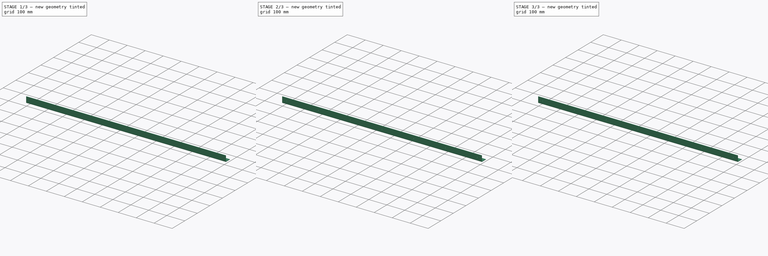
[diagram: build sequence overview — one tinted view per stage of 3, left to right]
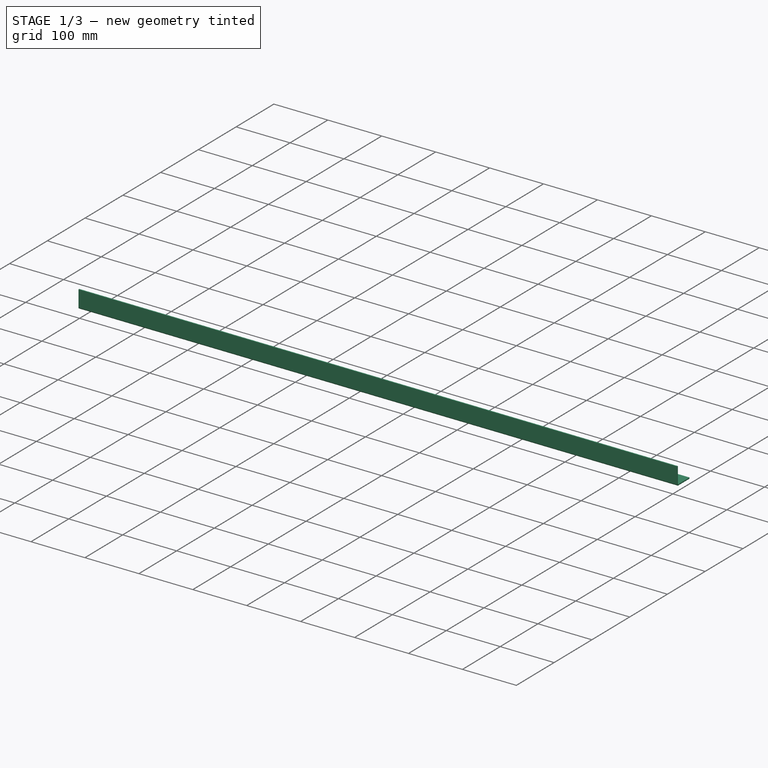
[diagram: stage 1 of 3 — iso view after this stage's code; geometry added in this stage tinted green]
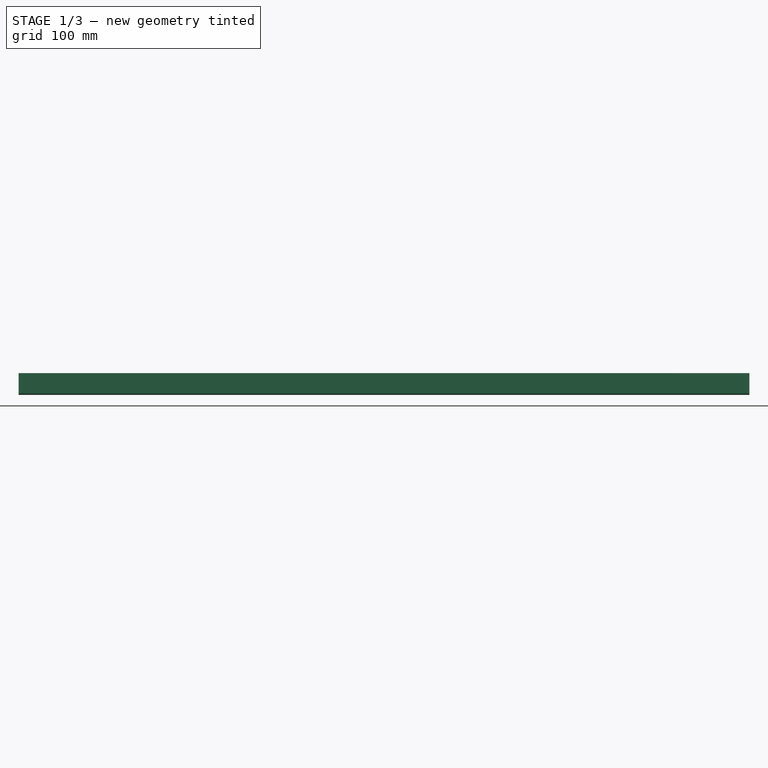
[diagram: stage 1 of 3 — front view after this stage's code; geometry added in this stage tinted green]
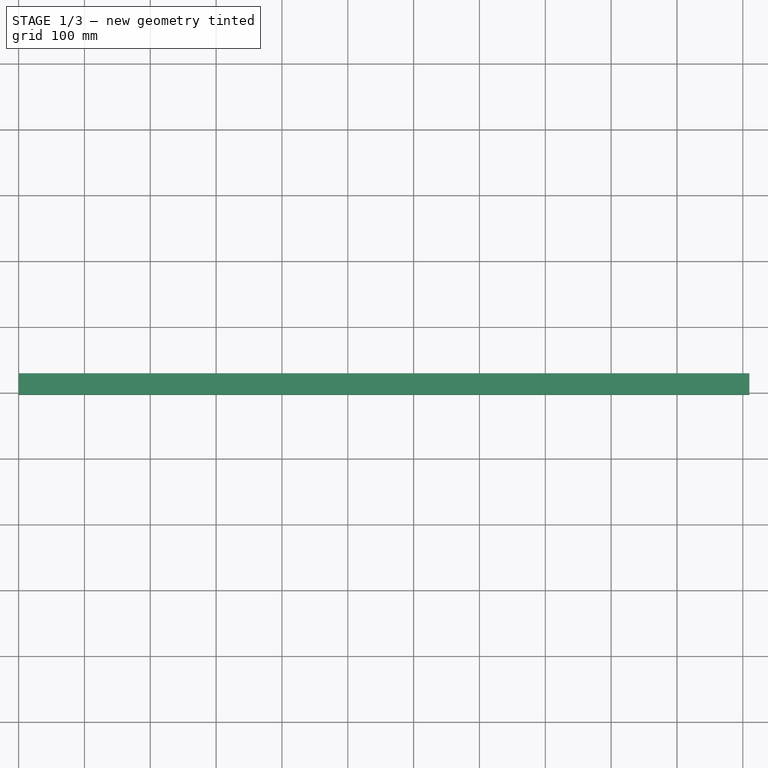
[diagram: stage 1 of 3 — top view after this stage's code; geometry added in this stage tinted green]
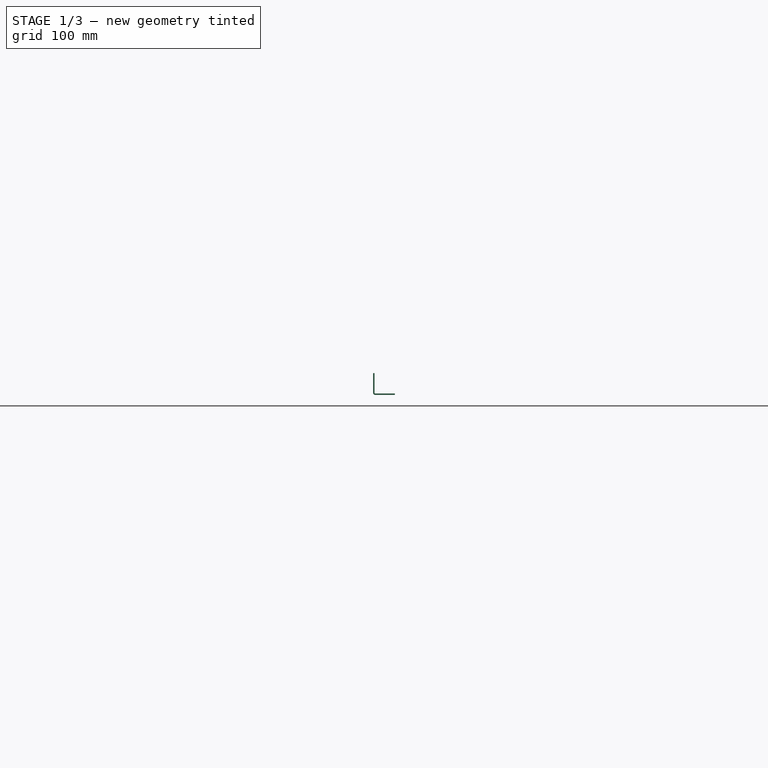
[diagram: stage 1 of 3 — right view after this stage's code; geometry added in this stage tinted green]
FCSTD DOCUMENT  (FreeCAD 0.17R13528 (Git))
Label: RaidisseurArriereConsole
License: All rights reserved
LicenseURL: http://en.wikipedia.org/wiki/All_rights_reserved
objects: Drawing::FeatureViewPython×12, Drawing::FeatureViewPart×3, Sketcher::SketchObject×2, PartDesign::Pocket×2, PartDesign::LinearPattern×2, Part::Box×1, Part::FeaturePython×1, PartDesign::FeatureBase×1, PartDesign::Body×1, Drawing::FeaturePage×1
note: 12 computed .brp shape members not serialized (recipe doc carries the construction recipe); baked Part::Feature solids carry a one-line shape summary decoded from their .brp

FEATURE [Part::Box] Box  label="Cube"
  AttacherType = Attacher::AttachEngine3D
  Height = 2
  Length = 1110
  Width = 30
FEATURE [Part::FeaturePython] Bend  # WARN: FeaturePython — macro-defined, semantics opaque (R4)
  angle = 90
  baseObject = -> Box [Face3]
  gap1 = 0
  gap2 = 0
  invert = false
  length = 30
  radius = 1
  reliefd = 1
  reliefw = 0.5
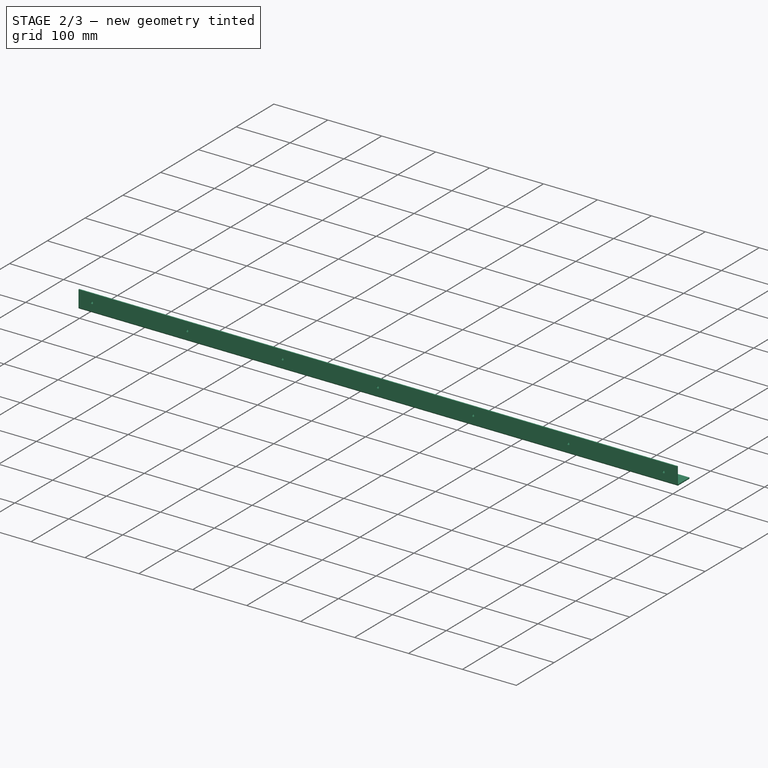
[diagram: stage 2 of 3 — iso view after this stage's code; geometry added in this stage tinted green]
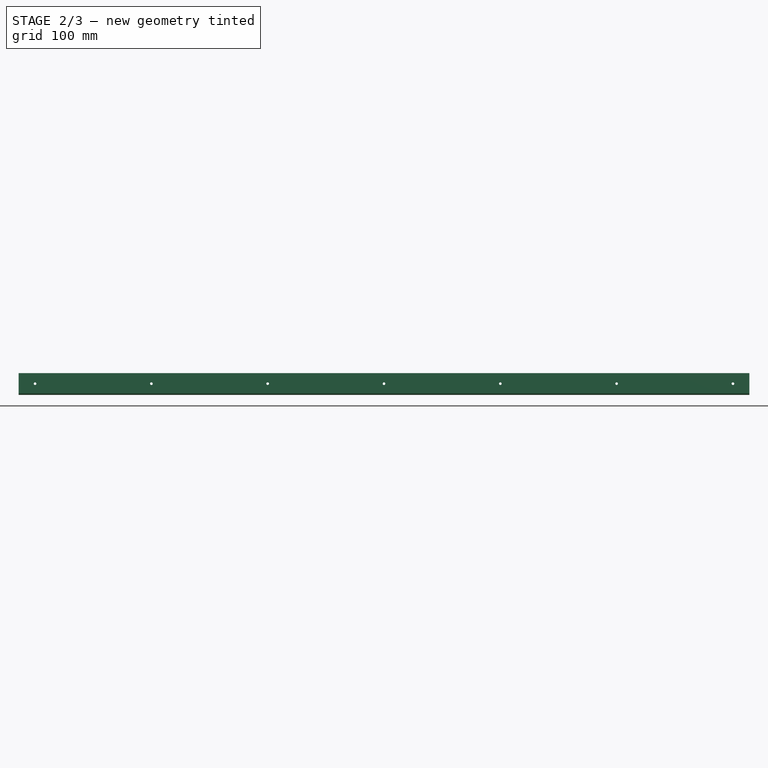
[diagram: stage 2 of 3 — front view after this stage's code; geometry added in this stage tinted green]
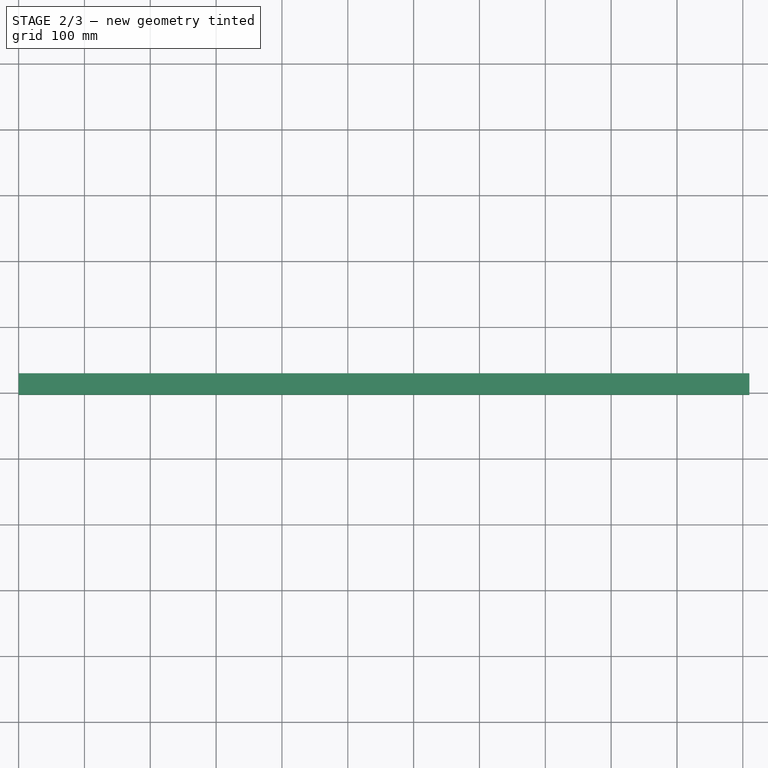
[diagram: stage 2 of 3 — top view after this stage's code; geometry added in this stage tinted green]
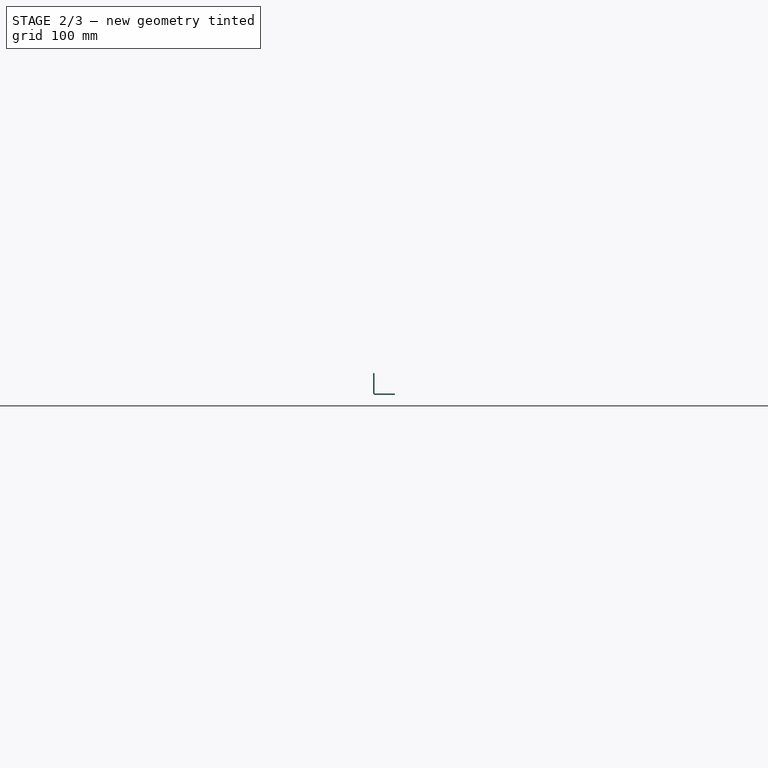
[diagram: stage 2 of 3 — right view after this stage's code; geometry added in this stage tinted green]
FEATURE [PartDesign::FeatureBase] BaseFeature
  BaseFeature = -> Bend
FEATURE [Sketcher::SketchObject] Sketch
  MapMode = 5
  Placement = pos=(0,-3,0) rot=(1,0,0;1.5708rad)
  Support = -> [BaseFeature]
  sketch-geometry (1):
    g0: Circle CenterX=25 CenterY=17 CenterZ=0 NormalX=0 NormalY=0 NormalZ=1 AngleXU=0 Radius=2
  constraints (3):
    c: DistanceX(g-1,g0) = 25
    c: DistanceY(g0) = 17
    c: Radius(g0) = 2
FEATURE [PartDesign::Pocket] Pocket
  BaseFeature = -> BaseFeature
  Length = 5
  Length2 = 100
  Profile = -> Sketch
  Refine = true
  Type = 1
FEATURE [PartDesign::LinearPattern] LinearPattern
  BaseFeature = -> Pocket
  Direction = -> Sketch [H_Axis]
  Length = 1060
  Occurrences = 7
  Originals = -> [Pocket]
  Refine = true
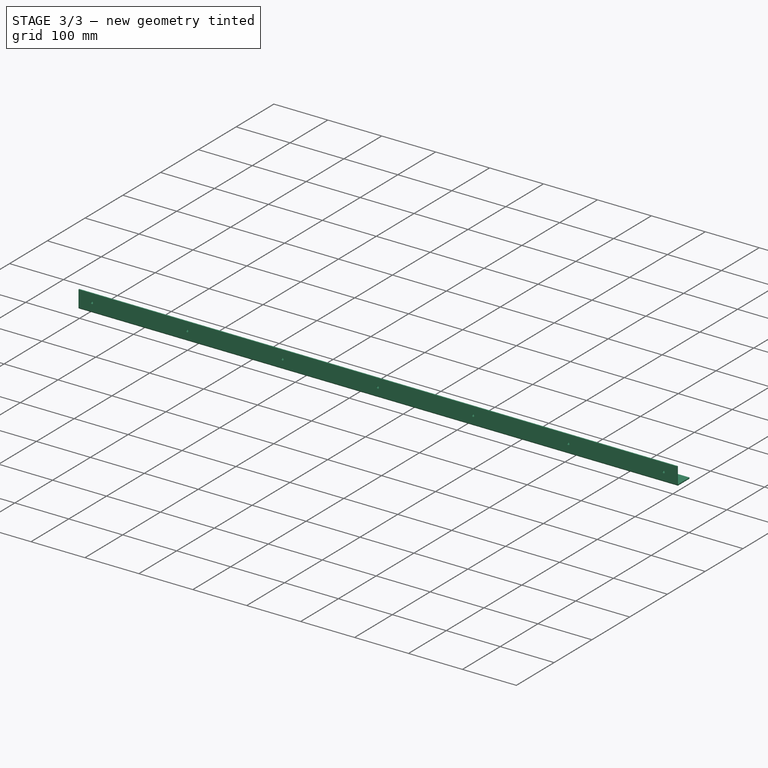
[diagram: stage 3 of 3 — iso view after this stage's code; geometry added in this stage tinted green]
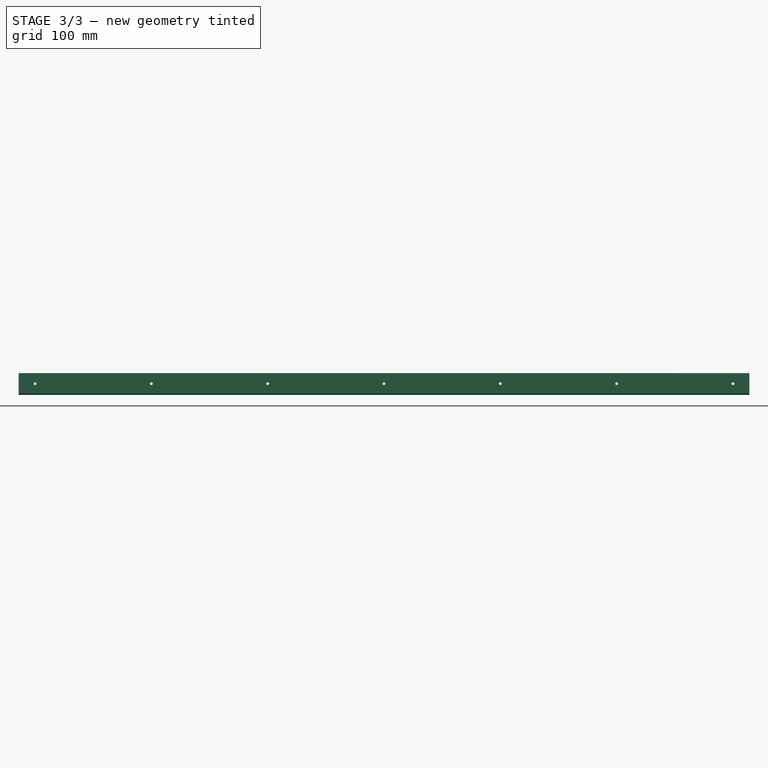
[diagram: stage 3 of 3 — front view after this stage's code; geometry added in this stage tinted green]
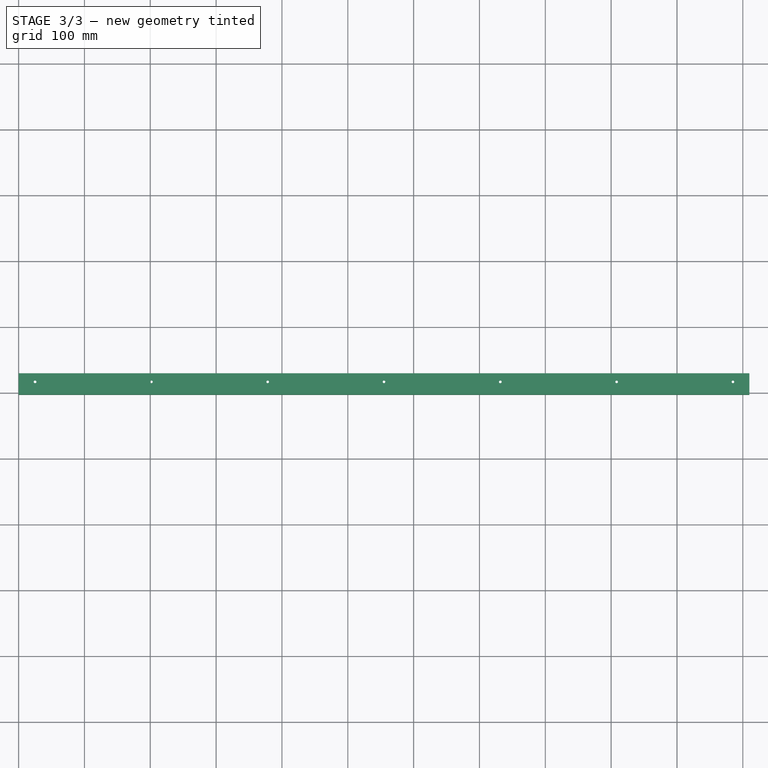
[diagram: stage 3 of 3 — top view after this stage's code; geometry added in this stage tinted green]
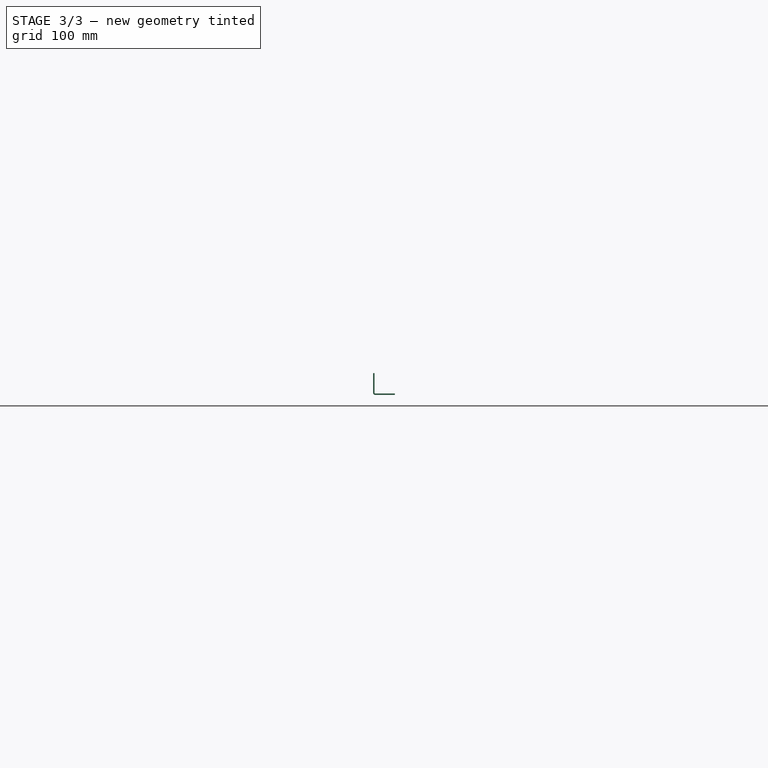
[diagram: stage 3 of 3 — right view after this stage's code; geometry added in this stage tinted green]
FEATURE [Sketcher::SketchObject] Sketch001
  MapMode = 5
  Placement = pos=(0,0,0) rot=(1,0,0;3.14159rad)
  Support = -> [LinearPattern]
  sketch-geometry (1):
    g0: Circle CenterX=25 CenterY=-17 CenterZ=0 NormalX=0 NormalY=0 NormalZ=1 AngleXU=0 Radius=2
  constraints (3):
    c: DistanceX(g0) = 25
    c: Radius(g0) = 2
    c: DistanceY(g0) = -17
FEATURE [PartDesign::Pocket] Pocket001
  BaseFeature = -> LinearPattern
  Length = 5
  Length2 = 100
  Profile = -> Sketch001
  Refine = true
  Type = 1
FEATURE [PartDesign::LinearPattern] LinearPattern001
  BaseFeature = -> Pocket001
  Direction = -> Sketch001 [H_Axis]
  Length = 1060
  Occurrences = 7
  Originals = -> [Pocket001]
  Refine = true
FEATURE [PartDesign::Body] Body
  BaseFeature = -> Bend
  Group = -> [BaseFeature,Sketch,Pocket,LinearPattern,Sketch001,Pocket001,LinearPattern001]
  Origin = -> Origin
  Tip = -> LinearPattern001
FEATURE [Drawing::FeatureViewPart] Ortho  label="Ortho_0_0"
  Direction = (0,0,1)
  HiddenWidth = 0.15
  LineWidth = 0.35
  Rotation = 0
  Scale = 0.2
  ShowHiddenLines = false
  ShowSmoothLines = false
  Source = -> LinearPattern001
  Tolerance = 0.05
  ViewResult = <g id="Ortho_0_0"\n   transform="rotate(0,25.4667,62.2667) translate(25.4667,62.2667) scale(0.2,0.2)"\n  >\n<g   fill="none"\n   stroke="rgb(0, 0, 0)"\n   stroke-linecap="butt"\n   stroke-linejoin="miter"\n   stroke-width="1.750000"\n   transform="scale(1,-1)"\n  >\n<path id= "1" d=" M 0 -3 L 1110 -3 " />\n<path id= "2" d=" M 1110 -3 L 1110 -1 " />\n<path id= "3" d=" M 1110 0 L 1110 30 " />\n<path d="M1110,0 Q1110,-0.169424 1110,-0.330279  Q1110,-0.435414 1110,-0.532032  Q1110,-0.625688 1110,-0.707107  Q1110,-0.744469 1110,-0.781831  Q1110,-0.814278 1110,-0.846724  Q1110,-0.873847 1110,-0.900969  Q1110,-0.922426 1110,-0.943883  Q1110,-0.959406 1110,-0.974928  Q1110,-0.98432 1110,-0.993712  Q1110,-0.996856 1110,-1 " /><path id= "5" d=" M 0 -1 L 1110 -1 " />\n<path id= "6" d=" M 0 -3 L 0 -1 " />\n<path d="M0,0 Q0,-0.169424 0,-0.330279  Q0,-0.435414 0,-0.532032  Q0,-0.625688 0,-0.707107  Q0,-0.744469 0,-0.781831  Q0,-0.814278 0,-0.846724  Q0,-0.873847 0,-0.900969  Q0,-0.922426 0,-0.943883  Q0,-0.959406 0,-0.974928  Q0,-0.98432 0,-0.993712  Q0,-0.996856 0,-1 " /><path id= "8" d=" M 0 0 L 0 30 " />\n<path id= "9" d=" M 0 30 L 1110 30 " />\n<path id= "10" d=" M 0 0 L 1110 0 " />\n<circle cx ="555" cy ="17" r ="2" /><circle cx ="378.333" cy ="17" r ="2" /><circle cx ="25" cy ="17" r ="2" /><circle cx ="201.667" cy ="17" r ="2" /><circle cx ="1085" cy ="17" r ="2" /><circle cx ="731.667" cy ="17" r ="2" /><circle cx ="908.333" cy ="17" r ="2" /></g>\n</g>
  Visible = true
  X = 25.4667
  Y = 62.2667
FEATURE [Drawing::FeatureViewPart] Ortho001  label="Ortho_1_0"
  Direction = (-1,0,0)
  HiddenWidth = 0.15
  LineWidth = 0.35
  Rotation = 180
  Scale = 0.2
  ShowHiddenLines = false
  ShowSmoothLines = false
  Source = -> LinearPattern001
  Tolerance = 0.05
  ViewResult = <g id="Ortho_1_0"\n   transform="rotate(180,264.933,62.2667) translate(264.933,62.2667) scale(0.2,0.2)"\n  >\n<g   fill="none"\n   stroke="rgb(0, 0, 0)"\n   stroke-linecap="butt"\n   stroke-linejoin="miter"\n   stroke-width="1.750000"\n   transform="scale(1,-1)"\n  >\n<path id= "1" d=" M -3 3 L -33 3 " />\n<path d="M0 0 A3 3 0 0 1 -3 3" /><path id= "3" d=" M -33 3 L -33 1 " />\n<path id= "4" d=" M -3 1 L -33 1 " />\n<path d="M-2 0 A1 1 0 0 1 -3 1" /><path id= "6" d=" M -2 0 L -2 -30 " />\n<path id= "7" d=" M 0 -30 L -2 -30 " />\n<path id= "8" d=" M 0 0 L 0 -30 " />\n</g>\n</g>
  Visible = true
  X = 264.933
  Y = 62.2667
FEATURE [Drawing::FeatureViewPart] Ortho002  label="Ortho_0_-1"
  Direction = (0,1,0)
  HiddenWidth = 0.15
  LineWidth = 0.35
  Rotation = 90
  Scale = 0.2
  ShowHiddenLines = false
  ShowSmoothLines = false
  Source = -> LinearPattern001
  Tolerance = 0.05
  ViewResult = <g id="Ortho_0_-1"\n   transform="rotate(90,25.4667,109.133) translate(25.4667,109.133) scale(0.2,0.2)"\n  >\n<g   fill="none"\n   stroke="rgb(0, 0, 0)"\n   stroke-linecap="butt"\n   stroke-linejoin="miter"\n   stroke-width="1.750000"\n   transform="scale(1,-1)"\n  >\n<path id= "1" d=" M 3 1110 L 33 1110 " />\n<path id= "2" d=" M 0 1110 L 2 1110 " />\n<path d="M2,1110 C2.0021,1110 2.00419,1110 2.00629,1110  C2.01255,1110 2.01881,1110 2.02507,1110  C2.03542,1110 2.04577,1110 2.05612,1110  C2.07042,1110 2.08473,1110 2.09903,1110  C2.11711,1110 2.13519,1110 2.15328,1110  C2.17491,1110 2.19654,1110 2.21817,1110  C2.24308,1110 2.26798,1110 2.29289,1110  C2.32077,1110 2.34864,1110 2.37651,1110  C2.43623,1110 2.49943,1110 2.56612,1110  C2.70184,1110 2.85021,1110 3,1110 " /><path id= "4" d=" M 33 0 L 33 1110 " />\n<path id= "5" d=" M 3 0 L 33 0 " />\n<path d="M2,0 C2.0021,0 2.00419,0 2.00629,0  C2.01255,0 2.01881,0 2.02507,0  C2.03542,0 2.04577,0 2.05612,0  C2.07042,0 2.08473,0 2.09903,0  C2.11711,0 2.13519,0 2.15328,0  C2.17491,0 2.19654,0 2.21817,0  C2.24308,0 2.26798,0 2.29289,0  C2.32077,0 2.34864,0 2.37651,0  C2.43623,0 2.49943,0 2.56612,0  C2.70184,0 2.85021,0 3,0 " /><path id= "7" d=" M 0 0 L 2 0 " />\n<circle cx ="17" cy ="555" r ="2" /><circle cx ="17" cy ="378.333" r ="2" /><circle cx ="17" cy ="25" r ="2" /><circle cx ="17" cy ="201.667" r ="2" /><circle cx ="17" cy ="1085" r ="2" /><circle cx ="17" cy ="731.667" r ="2" /><circle cx ="17" cy ="908.333" r ="2" /><path id= "15" d=" M 3 0 L 3 1110 " />\n<path id= "16" d=" M 0 0 L 0 1110 " />\n<path id= "17" d=" M 2 0 L 2 1110 " />\n</g>\n</g>
  Visible = true
  X = 25.4667
  Y = 109.133
FEATURE [Drawing::FeatureViewPython] dim001  # drawing view (typed FeaturePython)
  Rotation = 0
  ViewResult = <g> \n  <line x1="25.466700" y1="54.266700" x2="25.466700" y2="39.000000" style="stroke:rgb(0,0,255);stroke-width:0.30" />\n<line x1="247.466700" y1="54.266700" x2="247.466700" y2="39.000000" style="stroke:rgb(0,0,255);stroke-width:0.30" />\n<line x1="25.466700" y1="40.000000" x2="247.466700" y2="40.000000" style="stroke:rgb(0,0,255);stroke-width:0.30" /> \n  <polygon points="247.466700,40.000000 244.466700,39.000000 243.466700,40.000000 244.466700,41.000000" style="fill:rgb(0,0,255);stroke:rgb(0,0,255);stroke-width:0" /><polygon points="25.466700,40.000000 28.466700,41.000000 29.466700,40.000000 28.466700,39.000000" style="fill:rgb(0,0,255);stroke:rgb(0,0,255);stroke-width:0" /> \n  <text x="136.466700" y="38.000000" font-family="Verdana" font-size="3.6" fill="rgb(0,0,255)" text-anchor="middle" transform="rotate(0.000000 136.466700,38.000000)" >1110</text> </g>
  Visible = true
  X = 0
  Y = 0
  arrowL1 = 3
  arrowL2 = 1
  arrowW = 2
  arrow_scheme = 0
  autoPlaceOffset = 2
  autoPlaceText = true
  click1_x = 143.933
  click1_y = 40
  click2_x = 143.933
  click2_y = 40
  comma_decimal_place = false
  dimension_line_overshoot = 1
  gap_datum_points = 2
  halfDimension_linear = false
  lineColor = rgb(0,0,255)
  strokeWidth = 0.3
  textFormat_linear = %(value)3.0f
  textRenderer_color = rgb(0,0,255)
  textRenderer_family = Verdana
  textRenderer_size = 3.6
  unit_custom_scale = 1
  unit_scheme = 0
FEATURE [Drawing::FeatureViewPython] dim002  # drawing view (typed FeaturePython)
  Rotation = 0
  ViewResult = <g> \n  <line x1="263.333000" y1="62.266700" x2="259.000000" y2="62.266700" style="stroke:rgb(0,0,255);stroke-width:0.30" />\n<line x1="263.333000" y1="56.266700" x2="259.000000" y2="56.266700" style="stroke:rgb(0,0,255);stroke-width:0.30" />\n<line x1="260.000000" y1="62.266700" x2="260.000000" y2="56.266700" style="stroke:rgb(0,0,255);stroke-width:0.30" /> \n  <polygon points="260.000000,56.266700 261.000000,53.266700 260.000000,52.266700 259.000000,53.266700" style="fill:rgb(0,0,255);stroke:rgb(0,0,255);stroke-width:0" /><polygon points="260.000000,62.266700 259.000000,65.266700 260.000000,66.266700 261.000000,65.266700" style="fill:rgb(0,0,255);stroke:rgb(0,0,255);stroke-width:0" /> \n  <text x="258.000000" y="59.266700" font-family="Verdana" font-size="3.6" fill="rgb(0,0,255)" text-anchor="middle" transform="rotate(-90.000000 258.000000,59.266700)" > 30</text> </g>
  Visible = true
  X = 0
  Y = 0
  arrowL1 = 3
  arrowL2 = 1
  arrowW = 2
  arrow_scheme = 0
  autoPlaceOffset = 2
  autoPlaceText = true
  click1_x = 260
  click1_y = 55
  click2_x = 260
  click2_y = 55
  comma_decimal_place = false
  dimension_line_overshoot = 1
  gap_datum_points = 2
  halfDimension_linear = false
  lineColor = rgb(0,0,255)
  strokeWidth = 0.3
  textFormat_linear = %(value)3.0f
  textRenderer_color = rgb(0,0,255)
  textRenderer_family = Verdana
  textRenderer_size = 3.6
  unit_custom_scale = 1
  unit_scheme = 0
FEATURE [Drawing::FeatureViewPython] dim003  # drawing view (typed FeaturePython)
  Rotation = 0
  ViewResult = <g> \n  <line x1="265.533000" y1="64.866700" x2="265.533000" y2="76.000000" style="stroke:rgb(0,0,255);stroke-width:0.30" />\n<line x1="271.533000" y1="64.866700" x2="271.533000" y2="76.000000" style="stroke:rgb(0,0,255);stroke-width:0.30" />\n<line x1="265.533000" y1="75.000000" x2="271.533000" y2="75.000000" style="stroke:rgb(0,0,255);stroke-width:0.30" /> \n  <polygon points="271.533000,75.000000 274.533000,76.000000 275.533000,75.000000 274.533000,74.000000" style="fill:rgb(0,0,255);stroke:rgb(0,0,255);stroke-width:0" /><polygon points="265.533000,75.000000 262.533000,74.000000 261.533000,75.000000 262.533000,76.000000" style="fill:rgb(0,0,255);stroke:rgb(0,0,255);stroke-width:0" /> \n  <text x="268.533000" y="73.000000" font-family="Verdana" font-size="3.6" fill="rgb(0,0,255)" text-anchor="middle" transform="rotate(0.000000 268.533000,73.000000)" > 30</text> </g>
  Visible = true
  X = 0
  Y = 0
  arrowL1 = 3
  arrowL2 = 1
  arrowW = 2
  arrow_scheme = 0
  autoPlaceOffset = 2
  autoPlaceText = true
  click1_x = 265
  click1_y = 75
  click2_x = 265
  click2_y = 75
  comma_decimal_place = false
  dimension_line_overshoot = 1
  gap_datum_points = 2
  halfDimension_linear = false
  lineColor = rgb(0,0,255)
  strokeWidth = 0.3
  textFormat_linear = %(value)3.0f
  textRenderer_color = rgb(0,0,255)
  textRenderer_family = Verdana
  textRenderer_size = 3.6
  unit_custom_scale = 1
  unit_scheme = 0
FEATURE [Drawing::FeatureViewPython] dim004  # drawing view (typed FeaturePython)
  Rotation = 0
  ViewResult = <g> \n  <line x1="30.466700" y1="61.266700" x2="30.466700" y2="76.000000" style="stroke:rgb(0,0,255);stroke-width:0.30" />\n<line x1="65.800100" y1="61.266700" x2="65.800100" y2="76.000000" style="stroke:rgb(0,0,255);stroke-width:0.30" />\n<line x1="30.466700" y1="75.000000" x2="65.800100" y2="75.000000" style="stroke:rgb(0,0,255);stroke-width:0.30" /> \n  <polygon points="65.800100,75.000000 62.800100,74.000000 61.800100,75.000000 62.800100,76.000000" style="fill:rgb(0,0,255);stroke:rgb(0,0,255);stroke-width:0" /><polygon points="30.466700,75.000000 33.466700,76.000000 34.466700,75.000000 33.466700,74.000000" style="fill:rgb(0,0,255);stroke:rgb(0,0,255);stroke-width:0" /> \n  <text x="48.133400" y="73.000000" font-family="Verdana" font-size="3.6" fill="rgb(0,0,255)" text-anchor="middle" transform="rotate(0.000000 48.133400,73.000000)" >177</text> </g>
  Visible = true
  X = 0
  Y = 0
  arrowL1 = 3
  arrowL2 = 1
  arrowW = 2
  arrow_scheme = 0
  autoPlaceOffset = 2
  autoPlaceText = true
  click1_x = 64.647
  click1_y = 75
  click2_x = 64.647
  click2_y = 75
  comma_decimal_place = false
  dimension_line_overshoot = 1
  gap_datum_points = 2
  halfDimension_linear = false
  lineColor = rgb(0,0,255)
  strokeWidth = 0.3
  textFormat_linear = %(value)3.0f
  textRenderer_color = rgb(0,0,255)
  textRenderer_family = Verdana
  textRenderer_size = 3.6
  unit_custom_scale = 1
  unit_scheme = 0
FEATURE [Drawing::FeatureViewPython] dim005  # drawing view (typed FeaturePython)
  Rotation = 0
  ViewResult = <g> \n  <line x1="65.800100" y1="61.266700" x2="65.800100" y2="76.000000" style="stroke:rgb(0,0,255);stroke-width:0.30" />\n<line x1="101.133300" y1="61.266700" x2="101.133300" y2="76.000000" style="stroke:rgb(0,0,255);stroke-width:0.30" />\n<line x1="65.800100" y1="75.000000" x2="101.133300" y2="75.000000" style="stroke:rgb(0,0,255);stroke-width:0.30" /> \n  <polygon points="101.133300,75.000000 98.133300,74.000000 97.133300,75.000000 98.133300,76.000000" style="fill:rgb(0,0,255);stroke:rgb(0,0,255);stroke-width:0" /><polygon points="65.800100,75.000000 68.800100,76.000000 69.800100,75.000000 68.800100,74.000000" style="fill:rgb(0,0,255);stroke:rgb(0,0,255);stroke-width:0" /> \n  <text x="83.466700" y="73.000000" font-family="Verdana" font-size="3.6" fill="rgb(0,0,255)" text-anchor="middle" transform="rotate(0.000000 83.466700,73.000000)" >177</text> </g>
  Visible = true
  X = 0
  Y = 0
  arrowL1 = 3
  arrowL2 = 1
  arrowW = 2
  arrow_scheme = 0
  autoPlaceOffset = 2
  autoPlaceText = true
  click1_x = 99.3345
  click1_y = 75
  click2_x = 99.3345
  click2_y = 75
  comma_decimal_place = false
  dimension_line_overshoot = 1
  gap_datum_points = 2
  halfDimension_linear = false
  lineColor = rgb(0,0,255)
  strokeWidth = 0.3
  textFormat_linear = %(value)3.0f
  textRenderer_color = rgb(0,0,255)
  textRenderer_family = Verdana
  textRenderer_size = 3.6
  unit_custom_scale = 1
  unit_scheme = 0
FEATURE [Drawing::FeatureViewPython] dim006  # drawing view (typed FeaturePython)
  Rotation = 0
  ViewResult = <g> \n  <line x1="101.133300" y1="61.266700" x2="101.133300" y2="76.000000" style="stroke:rgb(0,0,255);stroke-width:0.30" />\n<line x1="136.466700" y1="61.266700" x2="136.466700" y2="76.000000" style="stroke:rgb(0,0,255);stroke-width:0.30" />\n<line x1="101.133300" y1="75.000000" x2="136.466700" y2="75.000000" style="stroke:rgb(0,0,255);stroke-width:0.30" /> \n  <polygon points="136.466700,75.000000 133.466700,74.000000 132.466700,75.000000 133.466700,76.000000" style="fill:rgb(0,0,255);stroke:rgb(0,0,255);stroke-width:0" /><polygon points="101.133300,75.000000 104.133300,76.000000 105.133300,75.000000 104.133300,74.000000" style="fill:rgb(0,0,255);stroke:rgb(0,0,255);stroke-width:0" /> \n  <text x="118.800000" y="73.000000" font-family="Verdana" font-size="3.6" fill="rgb(0,0,255)" text-anchor="middle" transform="rotate(0.000000 118.800000,73.000000)" >177</text> </g>
  Visible = true
  X = 0
  Y = 0
  arrowL1 = 3
  arrowL2 = 1
  arrowW = 2
  arrow_scheme = 0
  autoPlaceOffset = 2
  autoPlaceText = true
  click1_x = 134.022
  click1_y = 75
  click2_x = 134.022
  click2_y = 75
  comma_decimal_place = false
  dimension_line_overshoot = 1
  gap_datum_points = 2
  halfDimension_linear = false
  lineColor = rgb(0,0,255)
  strokeWidth = 0.3
  textFormat_linear = %(value)3.0f
  textRenderer_color = rgb(0,0,255)
  textRenderer_family = Verdana
  textRenderer_size = 3.6
  unit_custom_scale = 1
  unit_scheme = 0
FEATURE [Drawing::FeatureViewPython] dim007  # drawing view (typed FeaturePython)
  Rotation = 0
  ViewResult = <g> \n  <line x1="136.466700" y1="61.266700" x2="136.466700" y2="76.000000" style="stroke:rgb(0,0,255);stroke-width:0.30" />\n<line x1="171.800100" y1="61.266700" x2="171.800100" y2="76.000000" style="stroke:rgb(0,0,255);stroke-width:0.30" />\n<line x1="136.466700" y1="75.000000" x2="171.800100" y2="75.000000" style="stroke:rgb(0,0,255);stroke-width:0.30" /> \n  <polygon points="171.800100,75.000000 168.800100,74.000000 167.800100,75.000000 168.800100,76.000000" style="fill:rgb(0,0,255);stroke:rgb(0,0,255);stroke-width:0" /><polygon points="136.466700,75.000000 139.466700,76.000000 140.466700,75.000000 139.466700,74.000000" style="fill:rgb(0,0,255);stroke:rgb(0,0,255);stroke-width:0" /> \n  <text x="154.133400" y="73.000000" font-family="Verdana" font-size="3.6" fill="rgb(0,0,255)" text-anchor="middle" transform="rotate(0.000000 154.133400,73.000000)" >177</text> </g>
  Visible = true
  X = 0
  Y = 0
  arrowL1 = 3
  arrowL2 = 1
  arrowW = 2
  arrow_scheme = 0
  autoPlaceOffset = 2
  autoPlaceText = true
  click1_x = 168.71
  click1_y = 75
  click2_x = 168.71
  click2_y = 75
  comma_decimal_place = false
  dimension_line_overshoot = 1
  gap_datum_points = 2
  halfDimension_linear = false
  lineColor = rgb(0,0,255)
  strokeWidth = 0.3
  textFormat_linear = %(value)3.0f
  textRenderer_color = rgb(0,0,255)
  textRenderer_family = Verdana
  textRenderer_size = 3.6
  unit_custom_scale = 1
  unit_scheme = 0
FEATURE [Drawing::FeatureViewPython] dim008  # drawing view (typed FeaturePython)
  Rotation = 0
  ViewResult = <g> \n  <line x1="171.800100" y1="61.266700" x2="171.800100" y2="76.000000" style="stroke:rgb(0,0,255);stroke-width:0.30" />\n<line x1="207.133300" y1="61.266700" x2="207.133300" y2="76.000000" style="stroke:rgb(0,0,255);stroke-width:0.30" />\n<line x1="171.800100" y1="75.000000" x2="207.133300" y2="75.000000" style="stroke:rgb(0,0,255);stroke-width:0.30" /> \n  <polygon points="207.133300,75.000000 204.133300,74.000000 203.133300,75.000000 204.133300,76.000000" style="fill:rgb(0,0,255);stroke:rgb(0,0,255);stroke-width:0" /><polygon points="171.800100,75.000000 174.800100,76.000000 175.800100,75.000000 174.800100,74.000000" style="fill:rgb(0,0,255);stroke:rgb(0,0,255);stroke-width:0" /> \n  <text x="189.466700" y="73.000000" font-family="Verdana" font-size="3.6" fill="rgb(0,0,255)" text-anchor="middle" transform="rotate(0.000000 189.466700,73.000000)" >177</text> </g>
  Visible = true
  X = 0
  Y = 0
  arrowL1 = 3
  arrowL2 = 1
  arrowW = 2
  arrow_scheme = 0
  autoPlaceOffset = 2
  autoPlaceText = true
  click1_x = 203.397
  click1_y = 75
  click2_x = 203.397
  click2_y = 75
  comma_decimal_place = false
  dimension_line_overshoot = 1
  gap_datum_points = 2
  halfDimension_linear = false
  lineColor = rgb(0,0,255)
  strokeWidth = 0.3
  textFormat_linear = %(value)3.0f
  textRenderer_color = rgb(0,0,255)
  textRenderer_family = Verdana
  textRenderer_size = 3.6
  unit_custom_scale = 1
  unit_scheme = 0
FEATURE [Drawing::FeatureViewPython] dim009  # drawing view (typed FeaturePython)
  Rotation = 0
  ViewResult = <g> \n  <line x1="207.133300" y1="61.266700" x2="207.133300" y2="76.000000" style="stroke:rgb(0,0,255);stroke-width:0.30" />\n<line x1="242.466700" y1="61.266700" x2="242.466700" y2="76.000000" style="stroke:rgb(0,0,255);stroke-width:0.30" />\n<line x1="207.133300" y1="75.000000" x2="242.466700" y2="75.000000" style="stroke:rgb(0,0,255);stroke-width:0.30" /> \n  <polygon points="242.466700,75.000000 239.466700,74.000000 238.466700,75.000000 239.466700,76.000000" style="fill:rgb(0,0,255);stroke:rgb(0,0,255);stroke-width:0" /><polygon points="207.133300,75.000000 210.133300,76.000000 211.133300,75.000000 210.133300,74.000000" style="fill:rgb(0,0,255);stroke:rgb(0,0,255);stroke-width:0" /> \n  <text x="224.800000" y="73.000000" font-family="Verdana" font-size="3.6" fill="rgb(0,0,255)" text-anchor="middle" transform="rotate(0.000000 224.800000,73.000000)" >177</text> </g>
  Visible = true
  X = 0
  Y = 0
  arrowL1 = 3
  arrowL2 = 1
  arrowW = 2
  arrow_scheme = 0
  autoPlaceOffset = 2
  autoPlaceText = true
  click1_x = 238.085
  click1_y = 75
  click2_x = 238.085
  click2_y = 75
  comma_decimal_place = false
  dimension_line_overshoot = 1
  gap_datum_points = 2
  halfDimension_linear = false
  lineColor = rgb(0,0,255)
  strokeWidth = 0.3
  textFormat_linear = %(value)3.0f
  textRenderer_color = rgb(0,0,255)
  textRenderer_family = Verdana
  textRenderer_size = 3.6
  unit_custom_scale = 1
  unit_scheme = 0
FEATURE [Drawing::FeatureViewPython] dim010  # drawing view (typed FeaturePython)
  Rotation = 0
  ViewResult = <g> <line x1="247.466700" y1="64.266700" x2="247.466700" y2="76.000000" style="stroke:rgb(0,0,255);stroke-width:0.30" />\n<line x1="242.466700" y1="61.266706" x2="242.466700" y2="76.000000" style="stroke:rgb(0,0,255);stroke-width:0.30" />\n<line x1="247.466700" y1="75.000000" x2="242.466700" y2="75.000000" style="stroke:rgb(0,0,255);stroke-width:0.30" />\n<polygon points="247.466700,75.000000 250.466700,76.000000 251.466700,75.000000 250.466700,74.000000" style="fill:rgb(0,0,255);stroke:rgb(0,0,255);stroke-width:0" />\n<polygon points="242.466700,75.000000 239.466700,74.000000 238.466700,75.000000 239.466700,76.000000" style="fill:rgb(0,0,255);stroke:rgb(0,0,255);stroke-width:0" />\n<text x="244.966700" y="73.000000" font-family="Verdana" font-size="3.6" fill="rgb(0,0,255)" text-anchor="middle" transform="rotate(0.000000 244.966700,73.000000)" > 25</text> </g> 
  Visible = true
  X = 0
  Y = 0
  arrowL1 = 3
  arrowL2 = 1
  arrowW = 2
  arrow_scheme = 0
  autoPlaceOffset = 2
  autoPlaceText = true
  click1_x = 238.085
  click1_y = 75
  click2_x = 238.085
  click2_y = 75
  comma_decimal_place = false
  dimension_line_overshoot = 1
  gap_datum_points = 2
  halfDimension_linear = false
  lineColor = rgb(0,0,255)
  strokeWidth = 0.3
  textFormat_linear = %(value)3.0f
  textRenderer_color = rgb(0,0,255)
  textRenderer_family = Verdana
  textRenderer_size = 3.6
  unit_custom_scale = 1
  unit_scheme = 0
FEATURE [Drawing::FeatureViewPython] dim011  # drawing view (typed FeaturePython)
  Rotation = 0
  ViewResult = <g> <line x1="25.466700" y1="64.266700" x2="25.466700" y2="76.000000" style="stroke:rgb(0,0,255);stroke-width:0.30" />\n<line x1="30.466700" y1="61.266706" x2="30.466700" y2="76.000000" style="stroke:rgb(0,0,255);stroke-width:0.30" />\n<line x1="25.466700" y1="75.000000" x2="30.466700" y2="75.000000" style="stroke:rgb(0,0,255);stroke-width:0.30" />\n<polygon points="25.466700,75.000000 22.466700,74.000000 21.466700,75.000000 22.466700,76.000000" style="fill:rgb(0,0,255);stroke:rgb(0,0,255);stroke-width:0" />\n<polygon points="30.466700,75.000000 33.466700,76.000000 34.466700,75.000000 33.466700,74.000000" style="fill:rgb(0,0,255);stroke:rgb(0,0,255);stroke-width:0" />\n<text x="27.966700" y="73.000000" font-family="Verdana" font-size="3.6" fill="rgb(0,0,255)" text-anchor="middle" transform="rotate(0.000000 27.966700,73.000000)" > 25</text> </g> 
  Visible = true
  X = 0
  Y = 0
  arrowL1 = 3
  arrowL2 = 1
  arrowW = 2
  arrow_scheme = 0
  autoPlaceOffset = 2
  autoPlaceText = true
  click1_x = 29.9595
  click1_y = 75
  click2_x = 29.9595
  click2_y = 75
  comma_decimal_place = false
  dimension_line_overshoot = 1
  gap_datum_points = 2
  halfDimension_linear = false
  lineColor = rgb(0,0,255)
  strokeWidth = 0.3
  textFormat_linear = %(value)3.0f
  textRenderer_color = rgb(0,0,255)
  textRenderer_family = Verdana
  textRenderer_size = 3.6
  unit_custom_scale = 1
  unit_scheme = 0
FEATURE [Drawing::FeatureViewPython] text001  # drawing view (typed FeaturePython)
  Rotation = 0
  ViewResult = <g> <text x="65.000000" y="140.000000" font-family="inherit" font-size="5" fill="rgb(0,0,0)" text-anchor="inherit" transform="rotate(0.000000 65.000000,140.000000)" >Les deux faces de l'équerre sont percées aux mêmes cotes</text> </g>
  Visible = true
  X = 0
  Y = 0
  click1_x = 65
  click1_y = 140
  rotation = 0
  text = Les deux faces de l'équerre sont percées aux mêmes cotes
  textRenderer_addText_color = rgb(0,0,0)
  textRenderer_addText_family = inherit
  textRenderer_addText_size = 5
FEATURE [Drawing::FeaturePage] Page
  EditableTexts = AUTHOR NAME | Raidisseur panneau | Acier épaisseur 2mm | A4 | 1 / 1 | 1/5 | PN | DN | DD/MM/YYYY | REV A
  Group = -> [Ortho,Ortho001,Ortho002,dim001,dim002,dim003,dim004,dim005,dim006,dim007,dim008,dim009,dim010,dim011,text001]
  Template = <path>
note: 1 file-system path scrubbed to <path> (originals preserved in the JSON sidecar)
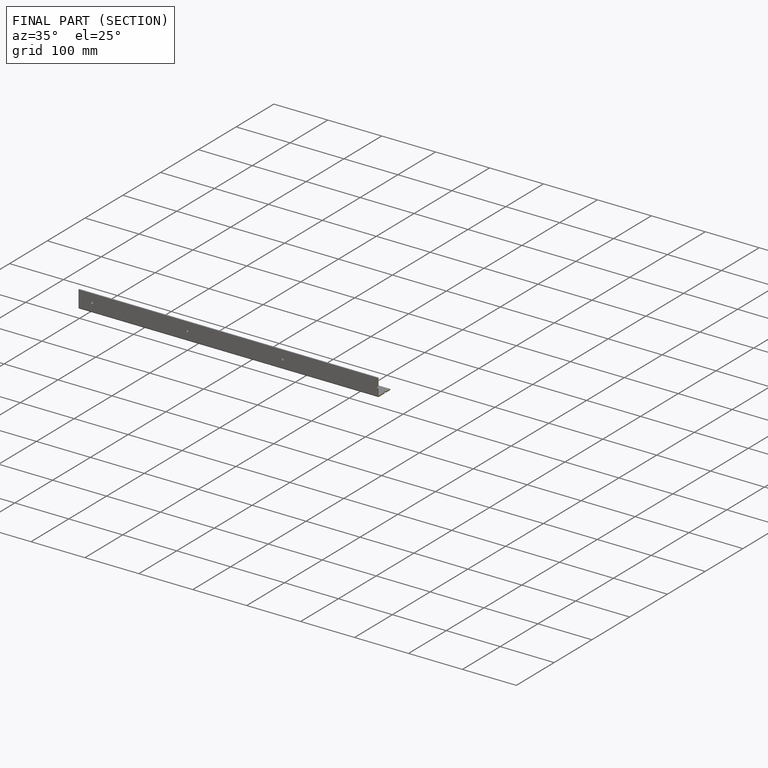
[diagram: finished part — half-section view (interior)]
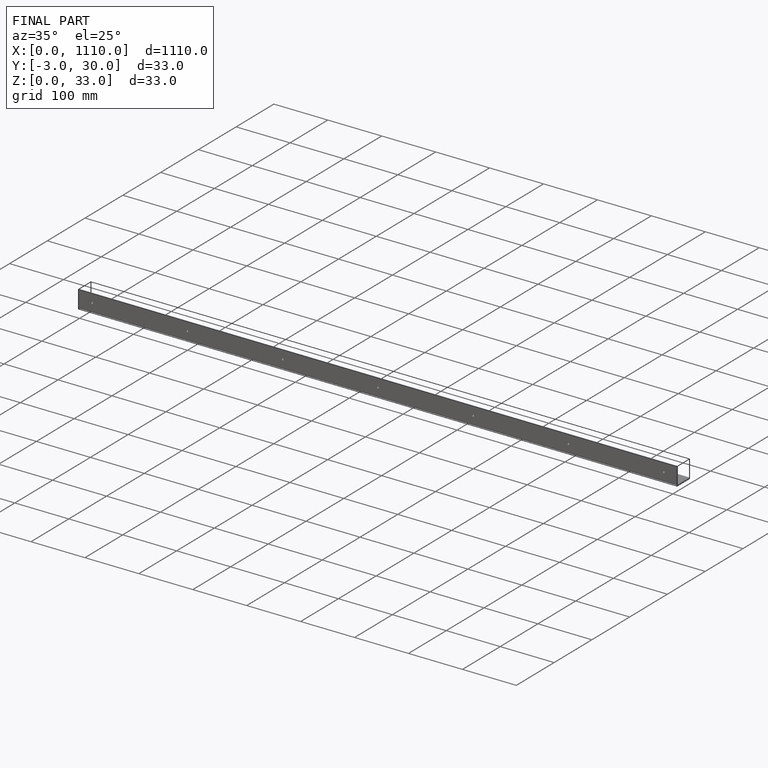
[diagram: finished part — iso view with bounding-box wireframe]
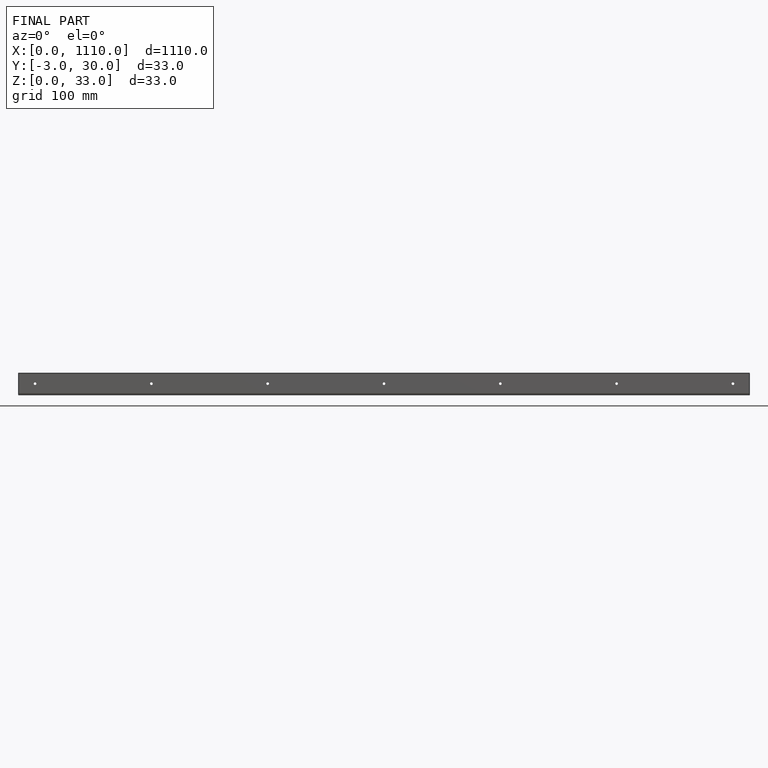
[diagram: finished part — front view with bounding-box wireframe]
